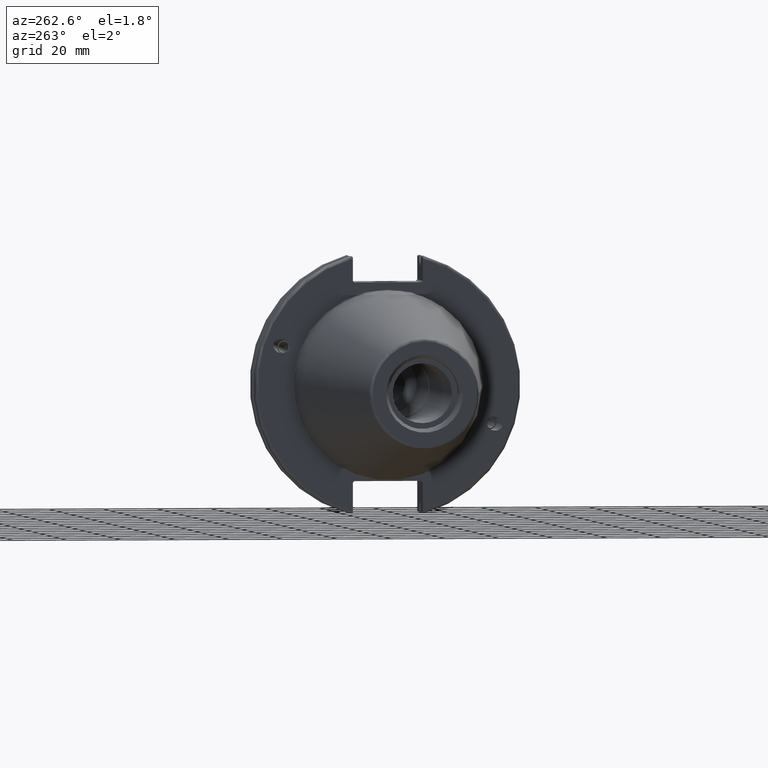
[diagram: clean part render]
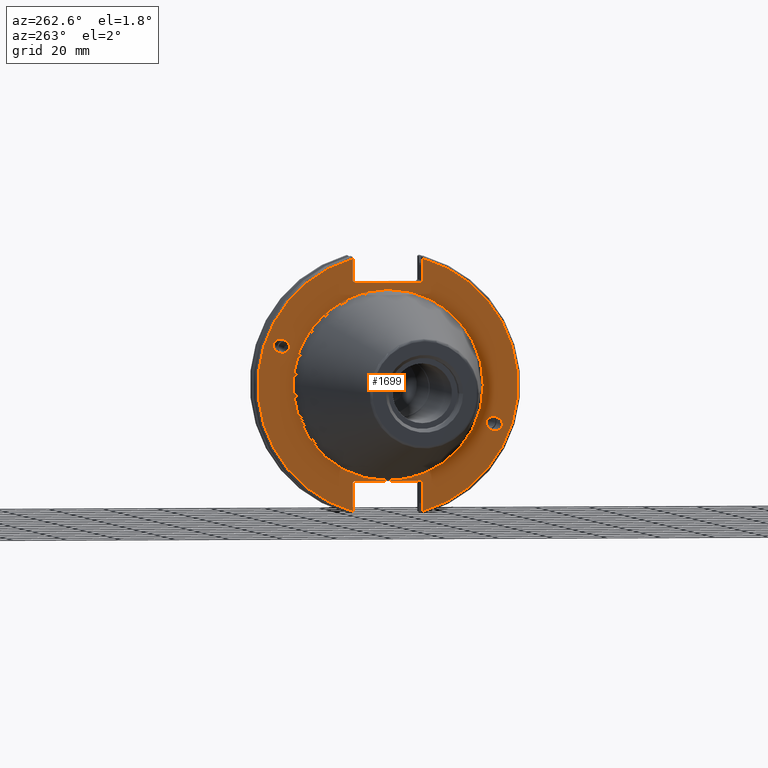
[diagram: same view with one face highlighted and labeled with its STEP entity id]
A machine part, auxiliary view. The second image highlights one B-rep face of the part: STEP entity #1699.
In plain terms, the highlighted planar face has unit normal (-1, 0, 0).
Its self-contained STEP definition (entity closure, byte-faithful):
#50=FACE_BOUND('',#364,.T.);
#51=FACE_BOUND('',#365,.T.);
#52=FACE_BOUND('',#366,.T.);
#68=PLANE('',#1877);
#172=CIRCLE('',#1875,35.125);
#174=CIRCLE('',#1878,48.2125);
#175=CIRCLE('',#1879,48.2125);
#249=FACE_OUTER_BOUND('',#363,.T.);
#363=EDGE_LOOP('',(#1377,#1378,#1379,#1380,#1381,#1382,#1383,#1384,#1385,
#1386,#1387,#1388));
#364=EDGE_LOOP('',(#1389));
#365=EDGE_LOOP('',(#1390));
#366=EDGE_LOOP('',(#1391));
#522=LINE('',#3301,#625);
#523=LINE('',#3303,#626);
#524=LINE('',#3305,#627);
#525=LINE('',#3307,#628);
#526=LINE('',#3309,#629);
#527=LINE('',#3313,#630);
#528=LINE('',#3315,#631);
#529=LINE('',#3317,#632);
#530=LINE('',#3319,#633);
#531=LINE('',#3320,#634);
#625=VECTOR('',#2229,10.);
#626=VECTOR('',#2230,10.);
#627=VECTOR('',#2231,10.);
#628=VECTOR('',#2232,10.);
#629=VECTOR('',#2233,10.);
#630=VECTOR('',#2236,10.);
#631=VECTOR('',#2237,10.);
#632=VECTOR('',#2238,10.);
#633=VECTOR('',#2239,10.);
#634=VECTOR('',#2240,10.);
#674=ELLIPSE('',#1833,3.05193647190364,2.5);
#675=ELLIPSE('',#1867,3.05193647190364,2.5);
#751=VERTEX_POINT('',#3018);
#789=VERTEX_POINT('',#3277);
#794=VERTEX_POINT('',#3292);
#795=VERTEX_POINT('',#3297);
#796=VERTEX_POINT('',#3298);
#797=VERTEX_POINT('',#3300);
#798=VERTEX_POINT('',#3302);
#799=VERTEX_POINT('',#3304);
#800=VERTEX_POINT('',#3306);
#801=VERTEX_POINT('',#3308);
#802=VERTEX_POINT('',#3310);
#803=VERTEX_POINT('',#3312);
#804=VERTEX_POINT('',#3314);
#805=VERTEX_POINT('',#3316);
#806=VERTEX_POINT('',#3318);
#948=EDGE_CURVE('',#751,#751,#674,.T.);
#999=EDGE_CURVE('',#789,#789,#675,.T.);
#1006=EDGE_CURVE('',#794,#794,#172,.T.);
#1008=EDGE_CURVE('',#795,#796,#174,.T.);
#1009=EDGE_CURVE('',#795,#797,#522,.T.);
#1010=EDGE_CURVE('',#798,#797,#523,.T.);
#1011=EDGE_CURVE('',#798,#799,#524,.T.);
#1012=EDGE_CURVE('',#800,#799,#525,.T.);
#1013=EDGE_CURVE('',#800,#801,#526,.T.);
#1014=EDGE_CURVE('',#802,#801,#175,.T.);
#1015=EDGE_CURVE('',#802,#803,#527,.T.);
#1016=EDGE_CURVE('',#804,#803,#528,.T.);
#1017=EDGE_CURVE('',#804,#805,#529,.T.);
#1018=EDGE_CURVE('',#806,#805,#530,.T.);
#1019=EDGE_CURVE('',#806,#796,#531,.T.);
#1377=ORIENTED_EDGE('',*,*,#1008,.F.);
#1378=ORIENTED_EDGE('',*,*,#1009,.T.);
#1379=ORIENTED_EDGE('',*,*,#1010,.F.);
#1380=ORIENTED_EDGE('',*,*,#1011,.T.);
#1381=ORIENTED_EDGE('',*,*,#1012,.F.);
#1382=ORIENTED_EDGE('',*,*,#1013,.T.);
#1383=ORIENTED_EDGE('',*,*,#1014,.F.);
#1384=ORIENTED_EDGE('',*,*,#1015,.T.);
#1385=ORIENTED_EDGE('',*,*,#1016,.F.);
#1386=ORIENTED_EDGE('',*,*,#1017,.T.);
#1387=ORIENTED_EDGE('',*,*,#1018,.F.);
#1388=ORIENTED_EDGE('',*,*,#1019,.T.);
#1389=ORIENTED_EDGE('',*,*,#948,.T.);
#1390=ORIENTED_EDGE('',*,*,#999,.T.);
#1391=ORIENTED_EDGE('',*,*,#1006,.F.);
#1699=ADVANCED_FACE('',(#249,#50,#51,#52),#68,.T.);
#1833=AXIS2_PLACEMENT_3D('',#3020,#2119,#2120);
#1867=AXIS2_PLACEMENT_3D('',#3279,#2203,#2204);
#1875=AXIS2_PLACEMENT_3D('',#3294,#2221,#2222);
#1877=AXIS2_PLACEMENT_3D('',#3296,#2225,#2226);
#1878=AXIS2_PLACEMENT_3D('',#3299,#2227,#2228);
#1879=AXIS2_PLACEMENT_3D('',#3311,#2234,#2235);
#2119=DIRECTION('center_axis',(1.,0.,0.));
#2120=DIRECTION('ref_axis',(0.,-0.939692620785908,-0.342020143325668));
#2203=DIRECTION('center_axis',(1.,0.,0.));
#2204=DIRECTION('ref_axis',(0.,0.939692620785908,0.342020143325669));
#2221=DIRECTION('center_axis',(-1.,0.,0.));
#2222=DIRECTION('ref_axis',(0.,-1.,1.83697019872103E-16));
#2225=DIRECTION('center_axis',(-1.,0.,0.));
#2226=DIRECTION('ref_axis',(0.,0.,1.));
#2227=DIRECTION('center_axis',(1.,0.,0.));
#2228=DIRECTION('ref_axis',(0.,-1.,1.60812264967664E-16));
#2229=DIRECTION('',(0.,0.,-1.));
#2230=DIRECTION('',(0.,-0.707106781186549,0.707106781186546));
#2231=DIRECTION('',(0.,1.,0.));
#2232=DIRECTION('',(0.,-0.707106781186549,-0.707106781186546));
#2233=DIRECTION('',(0.,0.,1.));
#2234=DIRECTION('center_axis',(1.,0.,0.));
#2235=DIRECTION('ref_axis',(0.,1.,-6.12323399573677E-17));
#2236=DIRECTION('',(0.,0.,1.));
#2237=DIRECTION('',(0.,0.707106781186549,-0.707106781186546));
#2238=DIRECTION('',(0.,-1.,0.));
#2239=DIRECTION('',(0.,0.707106781186549,0.707106781186546));
#2240=DIRECTION('',(0.,0.,-1.));
#3018=CARTESIAN_POINT('',(3.175,-36.5992078912529,-13.3210222701368));
#3020=CARTESIAN_POINT('Origin',(3.175,-39.4670900730082,-14.3648460196781));
#3277=CARTESIAN_POINT('',(3.175,36.5992078912529,13.3210222701368));
#3279=CARTESIAN_POINT('Origin',(3.175,39.4670900730082,14.3648460196781));
#3292=CARTESIAN_POINT('',(3.175,-4.30157188200508E-15,35.125));
#3294=CARTESIAN_POINT('Origin',(3.175,0.,0.));
#3296=CARTESIAN_POINT('Origin',(3.175,49.2125,0.));
#3297=CARTESIAN_POINT('',(3.175,-12.95,46.4407434937254));
#3298=CARTESIAN_POINT('',(3.175,-12.95,-46.4407434937254));
#3299=CARTESIAN_POINT('Origin',(3.175,0.,0.));
#3300=CARTESIAN_POINT('',(3.175,-12.95,38.219));
#3301=CARTESIAN_POINT('',(3.175,-12.95,18.8595));
#3302=CARTESIAN_POINT('',(3.175,-12.45,37.719));
#3303=CARTESIAN_POINT('',(3.175,12.2703750000001,12.998625));
#3304=CARTESIAN_POINT('',(3.175,12.45,37.719));
#3305=CARTESIAN_POINT('',(3.175,24.60625,37.719));
#3306=CARTESIAN_POINT('',(3.175,12.95,38.219));
#3307=CARTESIAN_POINT('',(3.175,12.335875,37.604875));
#3308=CARTESIAN_POINT('',(3.175,12.95,46.4407434937254));
#3309=CARTESIAN_POINT('',(3.175,12.95,18.8595));
#3310=CARTESIAN_POINT('',(3.175,12.95,-46.4407434937254));
#3311=CARTESIAN_POINT('Origin',(3.175,0.,0.));
#3312=CARTESIAN_POINT('',(3.175,12.95,-35.806));
#3313=CARTESIAN_POINT('',(3.175,12.95,-17.653));
#3314=CARTESIAN_POINT('',(3.175,12.45,-35.306));
#3315=CARTESIAN_POINT('',(3.175,12.939125,-35.795125));
#3316=CARTESIAN_POINT('',(3.175,-12.45,-35.306));
#3317=CARTESIAN_POINT('',(3.175,24.60625,-35.306));
#3318=CARTESIAN_POINT('',(3.175,-12.95,-35.806));
#3319=CARTESIAN_POINT('',(3.175,11.6671250000001,-11.188875));
#3320=CARTESIAN_POINT('',(3.175,-12.95,-17.653));